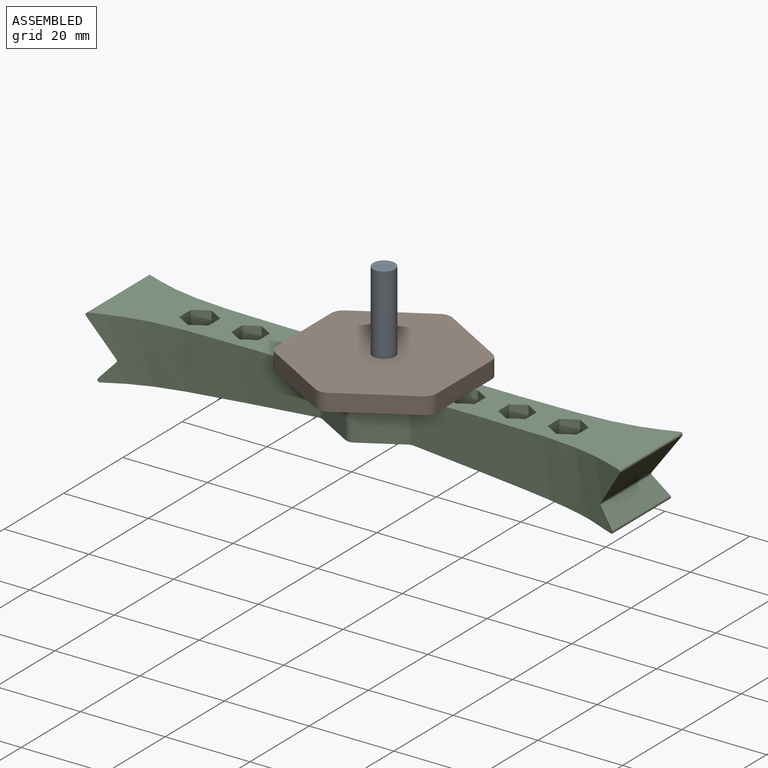
[diagram: assembled view]
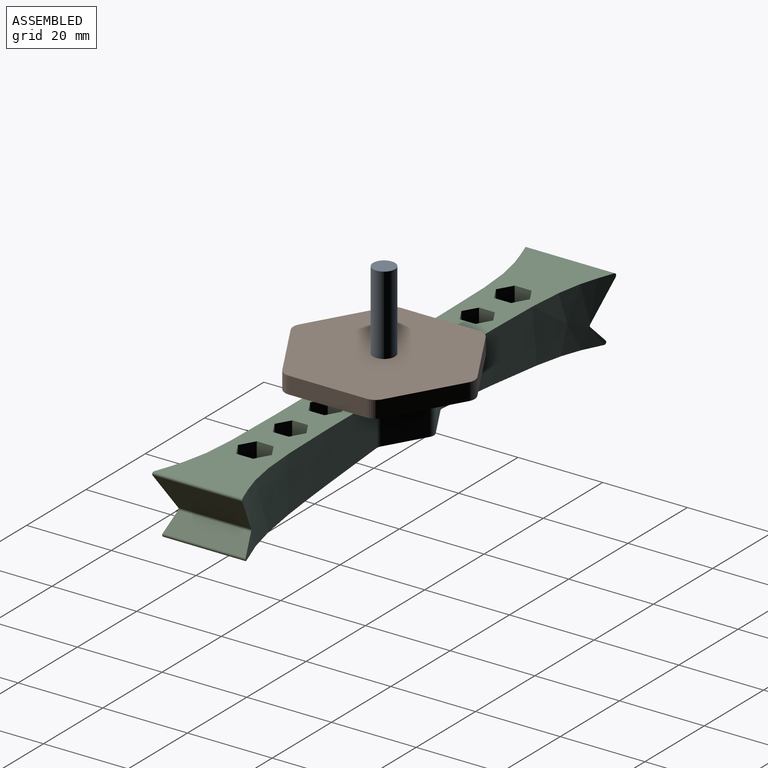
[diagram: assembled view, second angle]
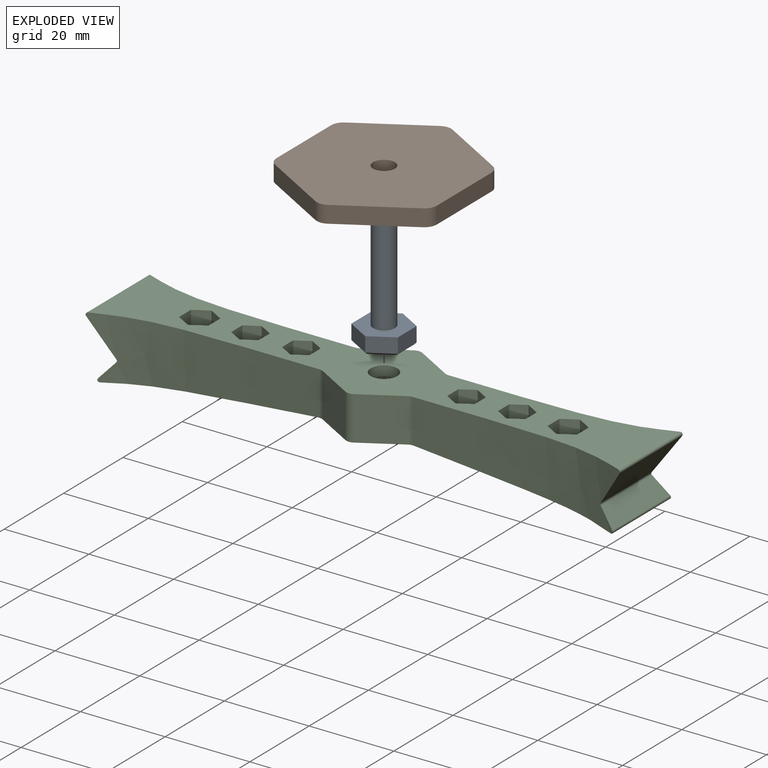
[diagram: exploded view]
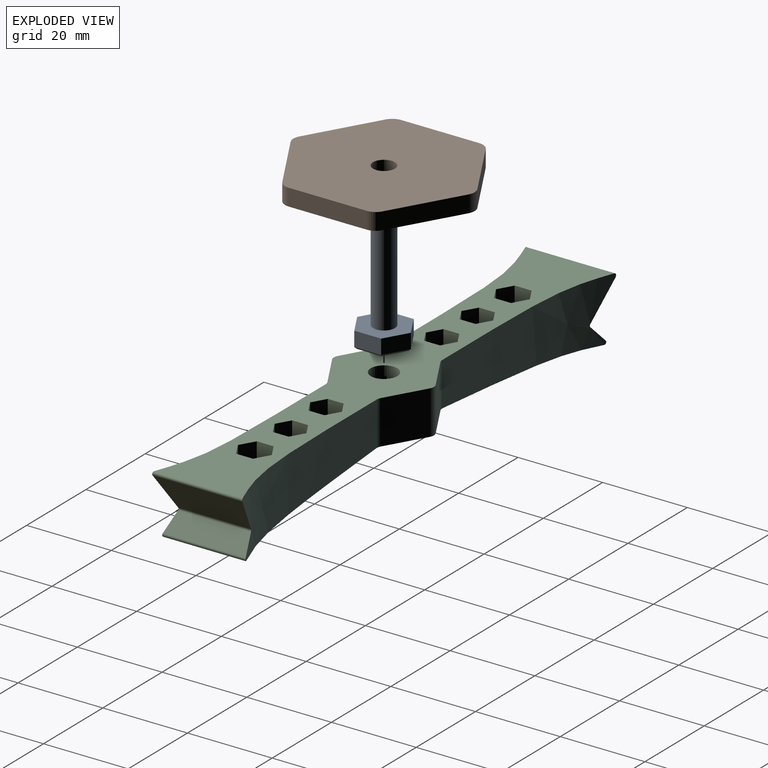
[diagram: exploded view, second angle]
ASSEMBLY  parts=3 mates=2
PART A: 16 faces, bbox 11x12.7x29 mm
  f0: plane 5.49x3.5mm, normal (0.5,-0.87,0), area 22.2mm2, adj f1,f5,f6,f13
  f1: plane 6.34x3.5mm, normal (1,0,0), area 22.2mm2, adj f0,f2,f6,f12
  f2: plane 5.49x3.5mm, normal (0.5,0.87,0), area 22.2mm2, adj f1,f3,f6,f10
  f3: plane 5.49x3.5mm, normal (-0.5,0.87,0), area 22.2mm2, adj f2,f4,f6,f8
  f4: plane 6.34x3.5mm, normal (-1,0,0), area 22.2mm2, adj f3,f5,f6,f9
  f5: plane 5.49x3.5mm, normal (-0.5,-0.87,0), area 22.2mm2, adj f0,f4,f6,f11
  f6: plane 12.68x10.98mm, normal (0,0,1), area 83.4mm2, adj f0,f1,f2,f3,f4,f5,f14
  f7: plane 11.53x9.98mm, normal (0,0,-1), area 86.3mm2, adj f8,f9,f10,f11,f12,f13
  f8: plane 5.49x3.46mm, normal (-0.35,0.61,-0.71), area 4.3mm2, adj f3,f7,f9,f10
  f9: plane 6.34x0.5mm, normal (-0.71,0,-0.71), area 4.3mm2, adj f4,f7,f8,f11
  f10: plane 5.49x3.46mm, normal (0.35,0.61,-0.71), area 4.3mm2, adj f2,f7,f8,f12
  f11: plane 5.49x3.46mm, normal (-0.35,-0.61,-0.71), area 4.3mm2, adj f5,f7,f9,f13
  f12: plane 6.34x0.5mm, normal (0.71,0,-0.71), area 4.3mm2, adj f1,f7,f10,f13
  f13: plane 5.49x3.46mm, normal (0.35,-0.61,-0.71), area 4.3mm2, adj f0,f7,f11,f12
  f14: cylinder r=2.58mm len=25mm, axis (0,0,-1), area 406.1mm2, adj f6,f15
  f15: plane 5.17x5.17mm, normal (0,0,1), area 21mm2, adj f14
PART B: 15 faces, bbox 37.9x42.8x4 mm
  f0: plane 15.94x9.2mm, normal (0.5,-0.87,0), area 74mm2, adj f7,f8,f9,f14
  f1: plane 18.41x4.02mm, normal (1,0,0), area 74mm2, adj f7,f8,f9,f10
  f2: plane 15.94x9.2mm, normal (0.5,0.87,0), area 74mm2, adj f7,f8,f10,f11
  f3: plane 15.94x9.2mm, normal (-0.5,0.87,0), area 74mm2, adj f7,f8,f11,f12
  f4: plane 18.41x4.02mm, normal (-1,0,0), area 74mm2, adj f7,f8,f12,f13
  f5: cylinder r=2.58mm len=5.17mm, axis (0,0,-1), area 65.3mm2, adj f7,f8
  f6: plane 15.94x9.2mm, normal (-0.5,-0.87,0), area 74mm2, adj f7,f8,f13,f14
  f7: plane 42.81x37.88mm, normal (0,0,1), area 1218.8mm2, adj f0,f1,f2,f3,f4,f5,f6,f9
  f8: plane 42.81x37.88mm, normal (0,0,-1), area 1218.8mm2, adj f0,f1,f2,f3,f4,f5,f6,f9
  f9: cylinder r=3mm len=4.02mm, axis (0,0,-1), area 12.6mm2, adj f0,f1,f7,f8
  f10: cylinder r=3mm len=4.02mm, axis (0,0,-1), area 12.6mm2, adj f1,f2,f7,f8
  f11: cylinder r=3mm len=4.02mm, axis (0,0,-1), area 12.6mm2, adj f2,f3,f7,f8
  f12: cylinder r=3mm len=4.02mm, axis (0,0,-1), area 12.6mm2, adj f3,f4,f7,f8
  f13: cylinder r=3mm len=4.02mm, axis (0,0,-1), area 12.6mm2, adj f4,f6,f7,f8
  f14: cylinder r=3mm len=4.02mm, axis (0,0,-1), area 12.6mm2, adj f0,f6,f7,f8
PART C: 91 faces, bbox 126.3x23.8x14.8 mm
  f0: plane 125.64x23.61mm, normal (0,0,1), area 1526.7mm2, adj f10,f11,f12,f13,f14,f15,f16,f17
  f1: plane 49.04x19.3mm, normal (-0.09,0,-1), area 535.5mm2, adj f5,f14,f15,f16,f17,f37,f38,f39
  f2: plane 21.4x8.72mm, normal (-0.83,0,-0.56), area 197.9mm2, adj f9,f19,f20,f88,f89
  f3: plane 19.68x3.95mm, normal (-0.74,0,0.67), area 95.7mm2, adj f19,f20,f89,f90
  f4: plane 49.04x19.3mm, normal (0.09,0,-1), area 535.5mm2, adj f5,f18,f19,f20,f21,f55,f56,f57
  f5: plane 23.61x22.5mm, normal (0,0,-1), area 120mm2, adj f1,f4,f10,f11,f12,f13,f14,f16
  f6: plane 19.68x3.95mm, normal (0.74,0,0.67), area 95.7mm2, adj f15,f17,f85,f86
  f7: plane 21.4x8.72mm, normal (0.83,0,-0.56), area 197.9mm2, adj f8,f15,f17,f86,f87
  f8: plane 0.85x0.22mm, normal (-0.09,1,0), area 0.1mm2, adj f7,f17,f87
  f9: plane 0.85x0.22mm, normal (0.09,1,0), area 0.1mm2, adj f2,f19,f88
  f10: plane 10.34x9.03mm, normal (-0.5,0.87,0), area 107.8mm2, adj f0,f5,f76,f77
  f11: plane 10.34x9.03mm, normal (0.5,0.87,0), area 107.8mm2, adj f0,f5,f75,f77
  f12: plane 10.34x9.03mm, normal (0.5,-0.87,0), area 107.8mm2, adj f0,f5,f74,f78
  f13: plane 10.34x9.03mm, normal (-0.5,-0.87,0), area 107.8mm2, adj f0,f5,f73,f78
  f14: plane 16.83x11.8mm, normal (0,-1,0), area 186.1mm2, adj f0,f1,f5,f15,f74
  f15: extruded ~35.2x14.64mm, area 427.9mm2, adj f0,f1,f6,f7,f14,f85,f86,f87
  f16: plane 16.83x11.8mm, normal (0,1,0), area 186.1mm2, adj f0,f1,f5,f17,f75
  f17: extruded ~35.01x14.64mm, area 428.1mm2, adj f0,f1,f6,f7,f8,f16,f85,f86
  f18: plane 16.83x11.8mm, normal (0,1,0), area 186.1mm2, adj f0,f4,f5,f19,f76
  f19: extruded ~35.01x14.64mm, area 428.1mm2, adj f0,f2,f3,f4,f9,f18,f88,f89
  f20: extruded ~35.2x14.64mm, area 427.9mm2, adj f0,f2,f3,f4,f21,f88,f89,f90
  f21: plane 16.83x11.8mm, normal (0,-1,0), area 186.1mm2, adj f0,f4,f5,f20,f73
  f22: plane 7.99x4.61mm, normal (-0.5,-0.87,0), area 36.9mm2, adj f5,f28,f79,f84
  f23: plane 9.22x4mm, normal (-1,0,0), area 36.9mm2, adj f5,f28,f79,f80
  f24: plane 7.99x4.61mm, normal (-0.5,0.87,0), area 36.9mm2, adj f5,f28,f80,f81
  f25: plane 7.99x4.61mm, normal (0.5,0.87,0), area 36.9mm2, adj f5,f28,f81,f82
  f26: plane 9.22x4mm, normal (1,0,0), area 36.9mm2, adj f5,f28,f82,f83
  f27: plane 7.99x4.61mm, normal (0.5,-0.87,0), area 36.9mm2, adj f5,f28,f83,f84
  f28: plane 20.44x17.97mm, normal (0,0,-1), area 174.6mm2, adj f22,f23,f24,f25,f26,f27,f29,f30
  f29: plane 5.5x4mm, normal (-0.5,-0.87,0), area 25.4mm2, adj f28,f30,f34,f35
  f30: plane 6.35x4mm, normal (-1,0,0), area 25.4mm2, adj f28,f29,f31,f35
  f31: plane 5.5x4mm, normal (-0.5,0.87,0), area 25.4mm2, adj f28,f30,f32,f35
  f32: plane 5.5x4mm, normal (0.5,0.87,0), area 25.4mm2, adj f28,f31,f33,f35
  f33: plane 6.35x4mm, normal (1,0,0), area 25.4mm2, adj f28,f32,f34,f35
  f34: plane 5.5x4mm, normal (0.5,-0.87,0), area 25.4mm2, adj f28,f29,f33,f35
  f35: plane 12.7x11mm, normal (0,0,-1), area 73.9mm2, adj f29,f30,f31,f32,f33,f34,f36
  f36: cylinder r=3.14mm len=6.27mm, axis (0,0,1), area 46.1mm2, adj f0,f35
  f37: plane 13.17x3.46mm, normal (0.5,0.87,0), area 52.1mm2, adj f0,f1,f38,f42
  f38: plane 13.47x3.46mm, normal (-0.5,0.87,0), area 53.3mm2, adj f0,f1,f37,f39
  f39: plane 13.47x4mm, normal (-1,0,0), area 53.9mm2, adj f0,f1,f38,f40
  f40: plane 13.47x3.46mm, normal (-0.5,-0.87,0), area 53.3mm2, adj f0,f1,f39,f41
  f41: plane 13.17x3.46mm, normal (0.5,-0.87,0), area 52.1mm2, adj f0,f1,f40,f42
  f42: plane 12.86x4mm, normal (1,0,0), area 51.5mm2, adj f0,f1,f37,f41
  f43: plane 11.83x3.75mm, normal (1,0,0), area 44.4mm2, adj f0,f1,f44,f48
  f44: plane 12.12x3.25mm, normal (0.5,0.87,0), area 44.9mm2, adj f0,f1,f43,f45
  f45: plane 12.4x3.25mm, normal (-0.5,0.87,0), area 46mm2, adj f0,f1,f44,f46
  f46: plane 12.4x3.75mm, normal (-1,0,0), area 46.5mm2, adj f0,f1,f45,f47
  f47: plane 12.4x3.25mm, normal (-0.5,-0.87,0), area 46mm2, adj f0,f1,f46,f48
  f48: plane 12.12x3.25mm, normal (0.5,-0.87,0), area 44.9mm2, adj f0,f1,f43,f47
  f49: plane 11.35x3.25mm, normal (-0.5,-0.87,0), area 42mm2, adj f0,f1,f50,f54
  f50: plane 11.06x3.25mm, normal (0.5,-0.87,0), area 41mm2, adj f0,f1,f49,f51
  f51: plane 10.78x3.75mm, normal (1,0,0), area 40.4mm2, adj f0,f1,f50,f52
  f52: plane 11.06x3.25mm, normal (0.5,0.87,0), area 41mm2, adj f0,f1,f51,f53
  f53: plane 11.35x3.25mm, normal (-0.5,0.87,0), area 42mm2, adj f0,f1,f52,f54
  f54: plane 11.35x3.75mm, normal (-1,0,0), area 42.6mm2, adj f0,f1,f49,f53
  f55: plane 11.06x3.25mm, normal (-0.5,0.87,0), area 41mm2, adj f0,f4,f56,f60
  f56: plane 10.78x3.75mm, normal (-1,0,0), area 40.4mm2, adj f0,f4,f55,f57
  f57: plane 11.06x3.25mm, normal (-0.5,-0.87,0), area 41mm2, adj f0,f4,f56,f58
  f58: plane 11.35x3.25mm, normal (0.5,-0.87,0), area 42mm2, adj f0,f4,f57,f59
  f59: plane 11.35x3.75mm, normal (1,0,0), area 42.6mm2, adj f0,f4,f58,f60
  f60: plane 11.35x3.25mm, normal (0.5,0.87,0), area 42mm2, adj f0,f4,f55,f59
  f61: plane 12.12x3.25mm, normal (-0.5,0.87,0), area 44.9mm2, adj f0,f4,f62,f66
  f62: plane 11.83x3.75mm, normal (-1,0,0), area 44.4mm2, adj f0,f4,f61,f63
  f63: plane 12.12x3.25mm, normal (-0.5,-0.87,0), area 44.9mm2, adj f0,f4,f62,f64
  f64: plane 12.4x3.25mm, normal (0.5,-0.87,0), area 46mm2, adj f0,f4,f63,f65
  f65: plane 12.4x3.75mm, normal (1,0,0), area 46.5mm2, adj f0,f4,f64,f66
  f66: plane 12.4x3.25mm, normal (0.5,0.87,0), area 46mm2, adj f0,f4,f61,f65
  f67: plane 13.17x3.46mm, normal (-0.5,0.87,0), area 52.1mm2, adj f0,f4,f68,f72
  f68: plane 12.86x4mm, normal (-1,0,0), area 51.5mm2, adj f0,f4,f67,f69
  f69: plane 13.17x3.46mm, normal (-0.5,-0.87,0), area 52.1mm2, adj f0,f4,f68,f70
  f70: plane 13.47x3.46mm, normal (0.5,-0.87,0), area 53.3mm2, adj f0,f4,f69,f71
  f71: plane 13.47x4mm, normal (1,0,0), area 53.9mm2, adj f0,f4,f70,f72
  f72: plane 13.47x3.46mm, normal (0.5,0.87,0), area 53.3mm2, adj f0,f4,f67,f71
  f73: cylinder r=2mm len=10.34mm, axis (0,0,1), area 10.8mm2, adj f0,f5,f13,f21
  f74: cylinder r=2mm len=10.34mm, axis (0,0,-1), area 10.8mm2, adj f0,f5,f12,f14
  f75: cylinder r=2mm len=10.34mm, axis (0,0,1), area 10.8mm2, adj f0,f5,f11,f16
  f76: cylinder r=2mm len=10.34mm, axis (0,0,-1), area 10.8mm2, adj f0,f5,f10,f18
  f77: cylinder r=2mm len=10.34mm, axis (0,0,1), area 21.7mm2, adj f0,f5,f10,f11
  f78: cylinder r=2mm len=10.34mm, axis (0,0,1), area 21.7mm2, adj f0,f5,f12,f13
  f79: cylinder r=1mm len=4mm, axis (0,0,1), area 4.2mm2, adj f5,f22,f23,f28
  f80: cylinder r=1mm len=4mm, axis (0,0,1), area 4.2mm2, adj f5,f23,f24,f28
  f81: cylinder r=1mm len=4mm, axis (0,0,1), area 4.2mm2, adj f5,f24,f25,f28
  f82: cylinder r=1mm len=4mm, axis (0,0,1), area 4.2mm2, adj f5,f25,f26,f28
  f83: cylinder r=1mm len=4mm, axis (0,0,1), area 4.2mm2, adj f5,f26,f27,f28
  f84: cylinder r=1mm len=4mm, axis (0,0,1), area 4.2mm2, adj f5,f22,f27,f28
  f85: cylinder r=0.5mm len=19.6mm, axis (0,1,0), area 23.3mm2, adj f1,f6,f15,f17
  f86: cylinder r=0.5mm len=17.24mm, axis (0,-1,0), area 11.4mm2, adj f6,f7,f15,f17
  f87: cylinder r=0.5mm len=21.22mm, axis (0,1,0), area 22.9mm2, adj f0,f7,f8,f15,f17
  f88: cylinder r=0.5mm len=21.22mm, axis (0,-1,0), area 22.9mm2, adj f0,f2,f9,f19,f20
  f89: cylinder r=0.5mm len=17.24mm, axis (0,-1,0), area 11.4mm2, adj f2,f3,f19,f20
  f90: cylinder r=0.5mm len=19.6mm, axis (0,1,0), area 23.3mm2, adj f3,f4,f19,f20
PLACE A t=(23.22,0.66,-12.93)mm
PLACE B t=(23.22,0.66,-6.59)mm
PLACE C t=(23.22,11.36,-6.59)mm
MATE fastened A.f14 <-> C.f36  axis (0,0,-1) through (23.22,0.66,-8.93)mm
MATE fastened B.f5 <-> C.f36  axis (0,0,-1) through (23.22,0.66,-6.59)mm
